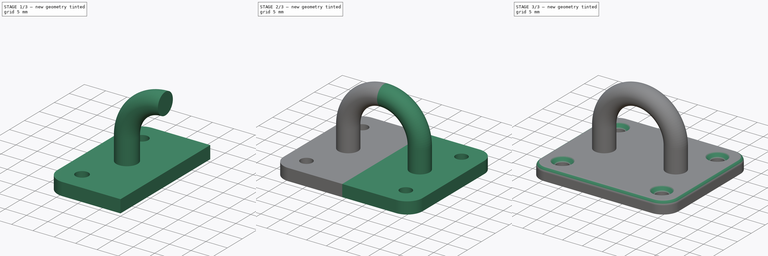
[diagram: build sequence overview — one tinted view per stage of 3, left to right]
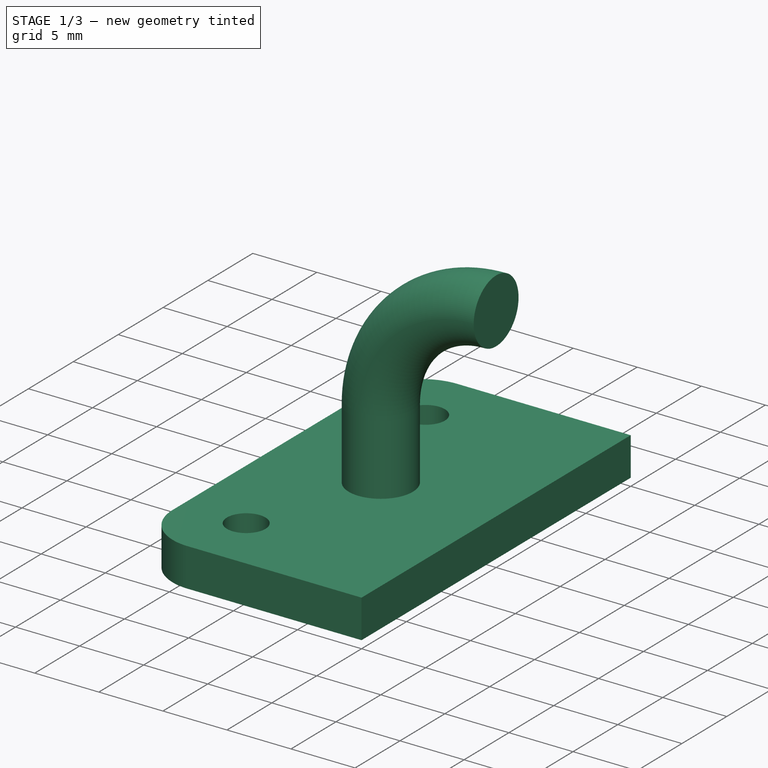
[diagram: stage 1 of 3 — iso view after this stage's code; geometry added in this stage tinted green]
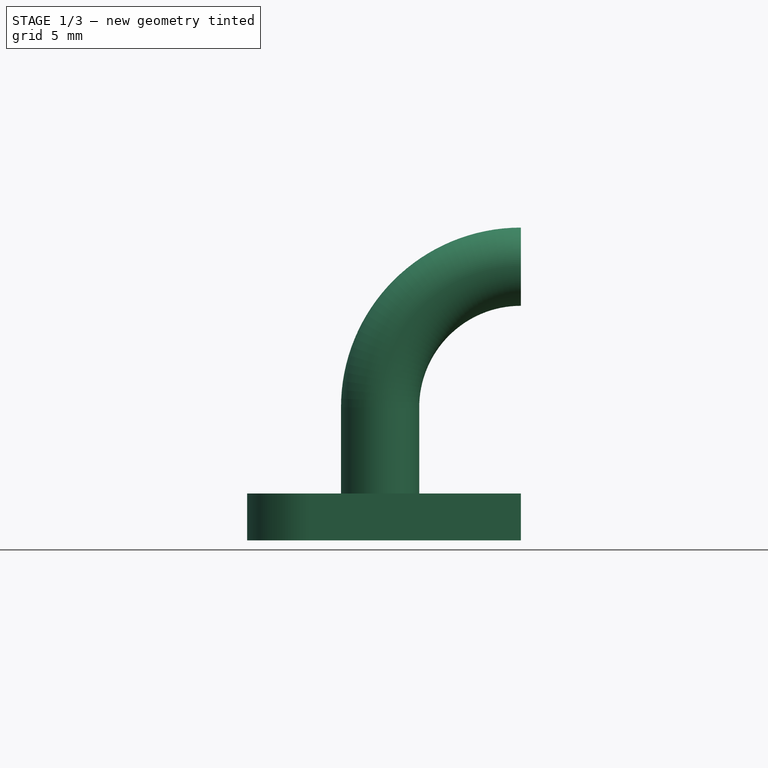
[diagram: stage 1 of 3 — front view after this stage's code; geometry added in this stage tinted green]
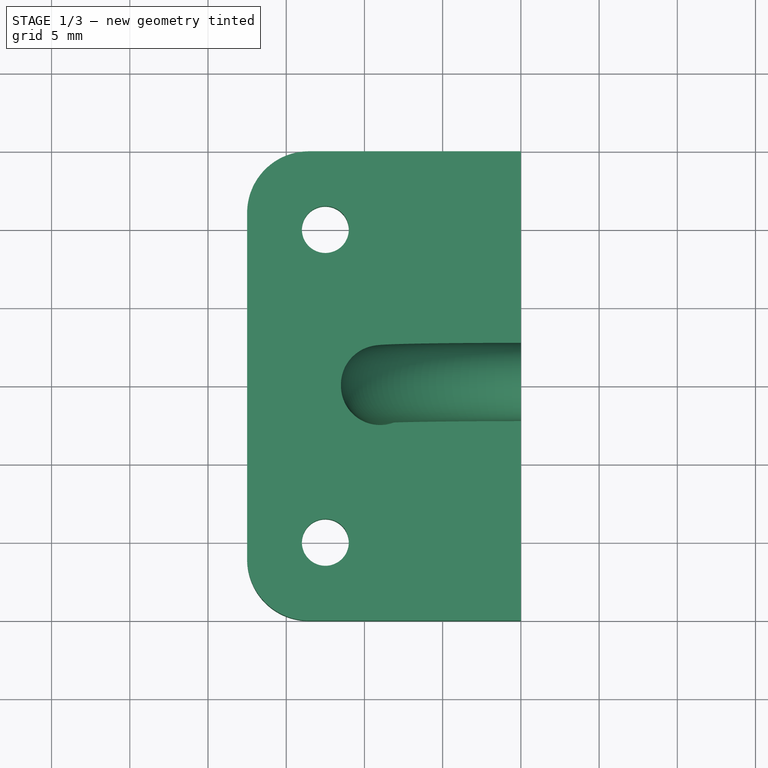
[diagram: stage 1 of 3 — top view after this stage's code; geometry added in this stage tinted green]
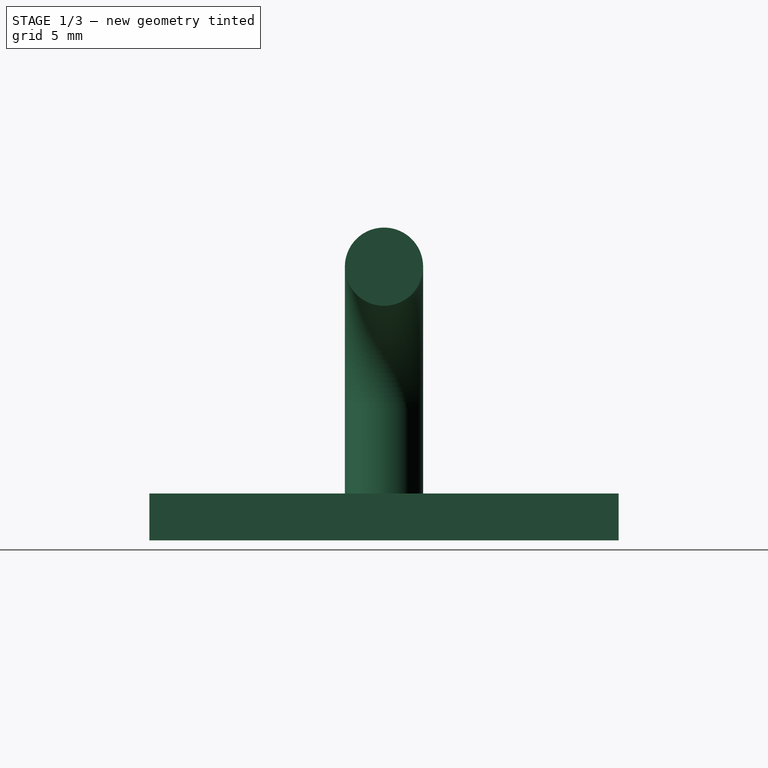
[diagram: stage 1 of 3 — right view after this stage's code; geometry added in this stage tinted green]
FCSTD DOCUMENT  (FreeCAD 0.20R29410 (Git))
Label: MangoJelly_Solutions_Tutorial_Ep14_1
License: All rights reserved
LicenseURL: http://en.wikipedia.org/wiki/All_rights_reserved
objects: Sketcher::SketchObject×3, PartDesign::Pad×1, PartDesign::AdditivePipe×1, PartDesign::Mirrored×1, PartDesign::Chamfer×1, PartDesign::Fillet×1, PartDesign::Body×1
note: 13 computed .brp shape members not serialized (recipe doc carries the construction recipe); baked Part::Feature solids carry a one-line shape summary decoded from their .brp

FEATURE [Sketcher::SketchObject] Sketch
  FullyConstrained = true
  Placement = pos=(0,0,0) rot=(1,0,0;1.5708rad)
  sketch-geometry (8):
    g0: GeomPoint X=0 Y=20 Z=0
    g1: GeomPoint X=4e-16 Y=15 Z=0
    g2: GeomPoint X=0 Y=3 Z=0
    g3: GeomPoint X=-17.5 Y=0 Z=0
    g4: GeomPoint X=-6.5 Y=0 Z=0
    g5: ArcOfCircle CenterX=0 CenterY=8.5 CenterZ=0 NormalX=0 NormalY=0 NormalZ=1 AngleXU=0 Radius=6.5 StartAngle=1.5708 EndAngle=3.14159
    g6: LineSegment StartX=-6.5 StartY=8.5 StartZ=0 EndX=-6.5 EndY=3 EndZ=0
    g7: LineSegment StartX=-6.5 StartY=3 StartZ=0 EndX=-6.5 EndY=0 EndZ=0
  constraints (20):
    c: PointOnObject(g0,g-2)
    c: PointOnObject(g1,g-2)
    c: PointOnObject(g2,g-2)
    c: DistanceY(g-1,g0) = 20
    c: DistanceY(g2,g1) = 12
    c: DistanceY(g1,g0) = 5
    c: DistanceY(g-1,g2) = 3
    c: PointOnObject(g3,g-1)
    c: DistanceX(g3,g-1) = 17.5
    c: PointOnObject(g4,g-1)
    c: DistanceX(g4,g-1) = 6.5
    c: Coincident(g5,g1)
    c: PointOnObject(g5,g-2)
    c: Horizontal(g5,g5)
    c: Vertical(g5,g4)
    c: Coincident(g6,g5)
    c: Coincident(g7,g4)
    c: Coincident(g6,g7)
    c: DistanceY(g7,g6) = 3
    c: Vertical(g5,g6)
FEATURE [Sketcher::SketchObject] Sketch001
  FullyConstrained = true
  MapMode = 5
  Support = -> [XY_Plane]
  sketch-geometry (8):
    g0: LineSegment StartX=0 StartY=15 StartZ=0 EndX=0 EndY=-15 EndZ=0
    g1: LineSegment StartX=0 StartY=-15 StartZ=0 EndX=-13.5607 EndY=-15 EndZ=0
    g2: Circle CenterX=-12.5 CenterY=-10 CenterZ=0 NormalX=0 NormalY=0 NormalZ=1 AngleXU=0 Radius=1.5
    g3: Circle CenterX=-12.5 CenterY=10 CenterZ=0 NormalX=0 NormalY=0 NormalZ=1 AngleXU=0 Radius=1.5
    g4: ArcOfCircle CenterX=-13.5607 CenterY=-11.0607 CenterZ=0 NormalX=0 NormalY=0 NormalZ=1 AngleXU=0 Radius=3.93934 StartAngle=3.14159 EndAngle=4.71239
    g5: LineSegment StartX=-17.5 StartY=-11.0607 StartZ=0 EndX=-17.5 EndY=11.0607 EndZ=0
    g6: LineSegment StartX=-13.5607 StartY=15 StartZ=0 EndX=0 EndY=15 EndZ=0
    g7: ArcOfCircle CenterX=-13.5607 CenterY=11.0607 CenterZ=0 NormalX=0 NormalY=0 NormalZ=1 AngleXU=0 Radius=3.93934 StartAngle=1.5708 EndAngle=3.14159
  constraints (20):
    c: Coincident(g0,g1)
    c: Horizontal(g1)
    c: Vertical(g0)
    c: Symmetric(g0,g0,g-1)
    c: Diameter(g3) = 3
    c: Equal(g2,g3)
    c: Symmetric(g2,g3,g-1)
    c: DistanceY(g0,g0) = 30
    c: Vertical(g5)
    c: Coincident(g6,g0)
    c: Horizontal(g6)
    c: DistanceX(g4,g0) = 17.5
    c: Tangent(g7,g5) = 1.5708
    c: Tangent(g7,g6) = 1.5708
    c: Tangent(g5,g4) = 1.5708
    c: Tangent(g4,g1) = 1.5708
    c: DistanceY(g3,g6) = 5
    c: DistanceX(g5,g3) = 5
    c: PointOnObject(g4,g2)
    c: PointOnObject(g7,g3)
FEATURE [PartDesign::Pad] Pad
  Direction = (0,0,1)
  Length = 3
  Length2 = 10
  Profile = -> Sketch001
  ReferenceAxis = -> Sketch001 [N_Axis]
  Type = 0
FEATURE [Sketcher::SketchObject] Sketch002
  FullyConstrained = true
  MapMode = 5
  Placement = pos=(0,0,3) rot=(0,0,1;0rad)
  Support = -> [Pad]
  sketch-geometry (2):
    g0: Circle CenterX=-9 CenterY=0 CenterZ=0 NormalX=0 NormalY=0 NormalZ=1 AngleXU=0 Radius=2.5
    g1: GeomPoint X=-6.5 Y=0 Z=0
  constraints (5):
    c: PointOnObject(g0,g-1)
    c: Diameter(g0) = 5
    c: PointOnObject(g1,g0)
    c: PointOnObject(g1,g-1)
    c: DistanceX(g1,g-1) = 6.5
FEATURE [PartDesign::AdditivePipe] AdditivePipe
  AuxilleryCurvelinear = true
  AuxillerySpineTangent = false
  BaseFeature = -> Pad
  Binormal = (0,0,0)
  Mode = 0
  Profile = -> Sketch002
  Spine = -> Sketch [Edge2,Edge1]
  SpineTangent = false
  Transformation = 0
  Transition = 0
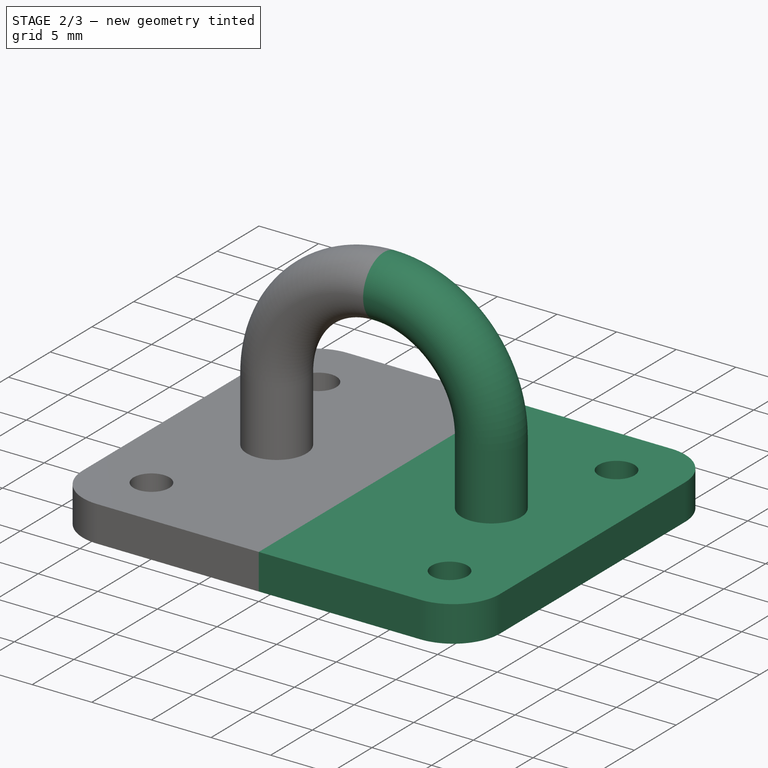
[diagram: stage 2 of 3 — iso view after this stage's code; geometry added in this stage tinted green]
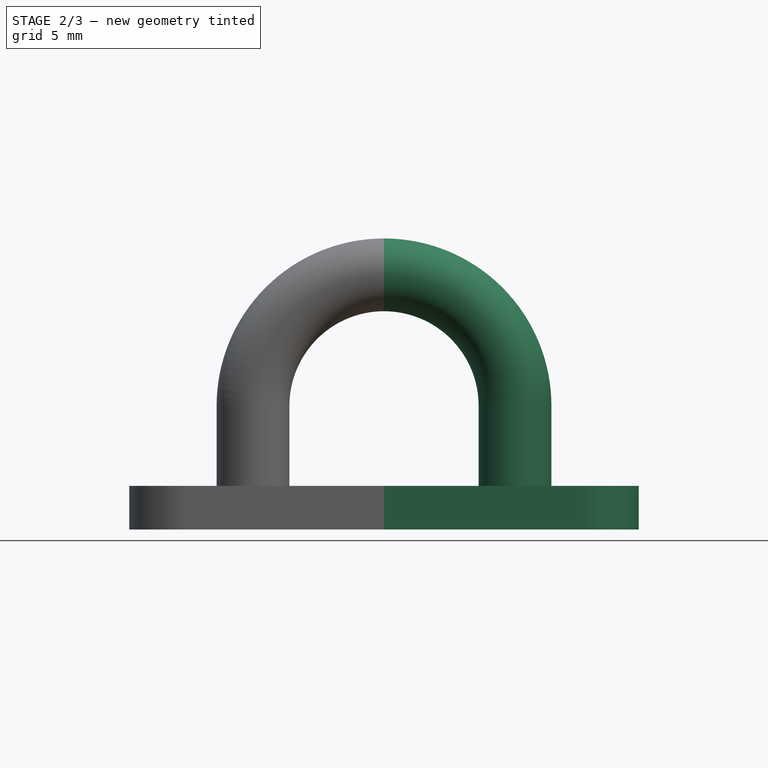
[diagram: stage 2 of 3 — front view after this stage's code; geometry added in this stage tinted green]
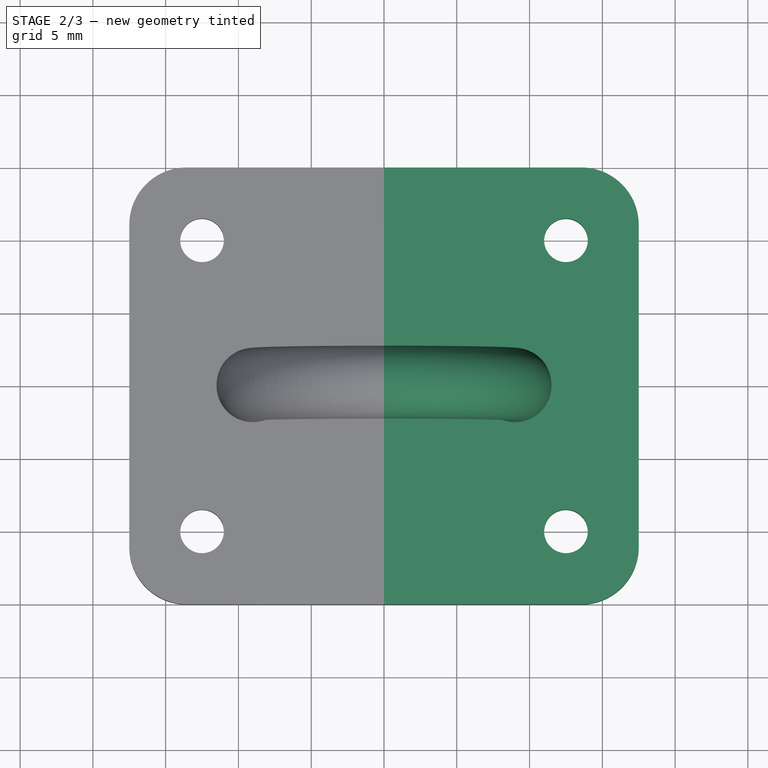
[diagram: stage 2 of 3 — top view after this stage's code; geometry added in this stage tinted green]
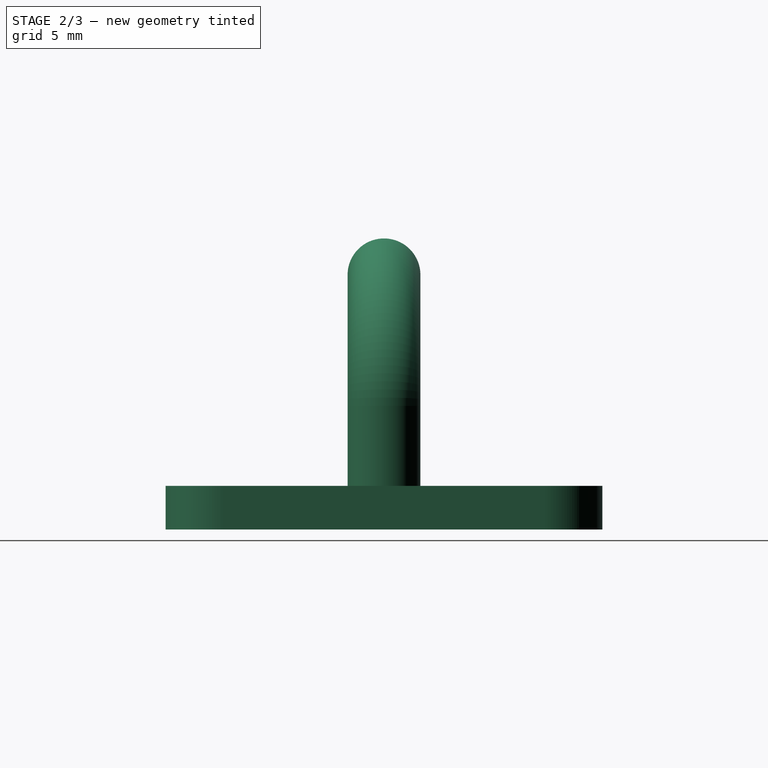
[diagram: stage 2 of 3 — right view after this stage's code; geometry added in this stage tinted green]
FEATURE [PartDesign::Mirrored] Mirrored
  BaseFeature = -> AdditivePipe
  MirrorPlane = -> Sketch001 [V_Axis]
  Originals = -> [Pad,AdditivePipe]
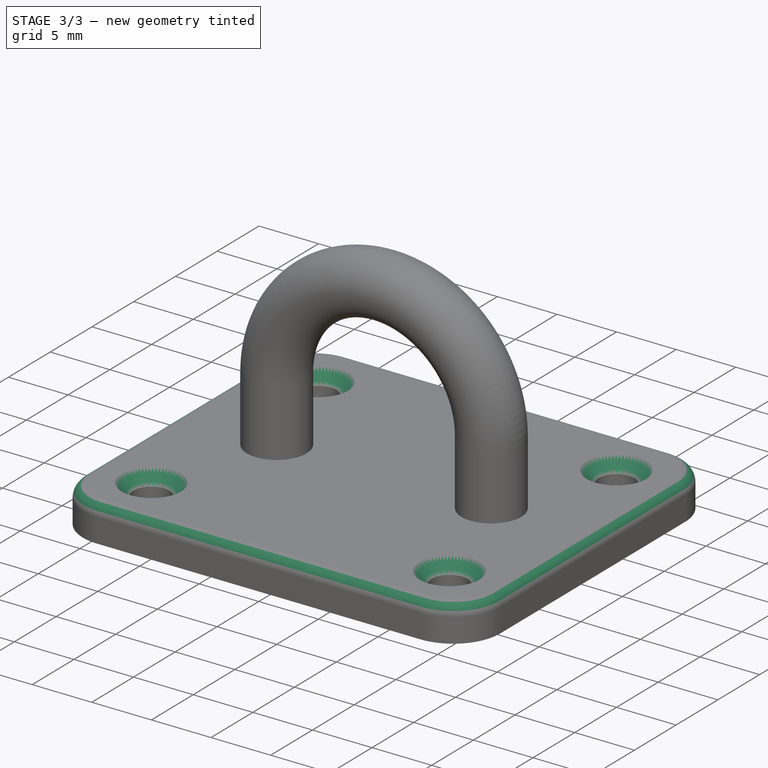
[diagram: stage 3 of 3 — iso view after this stage's code; geometry added in this stage tinted green]
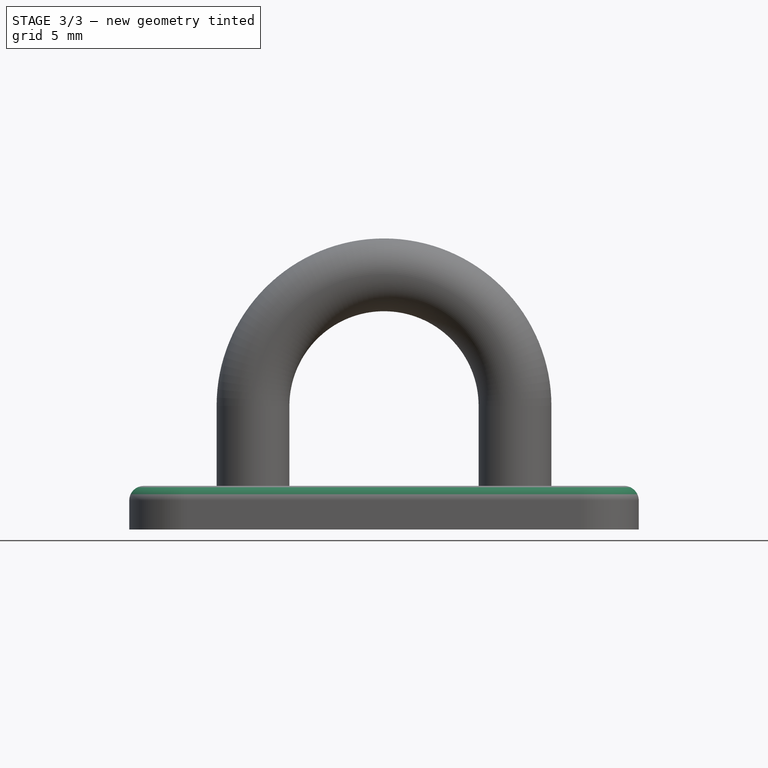
[diagram: stage 3 of 3 — front view after this stage's code; geometry added in this stage tinted green]
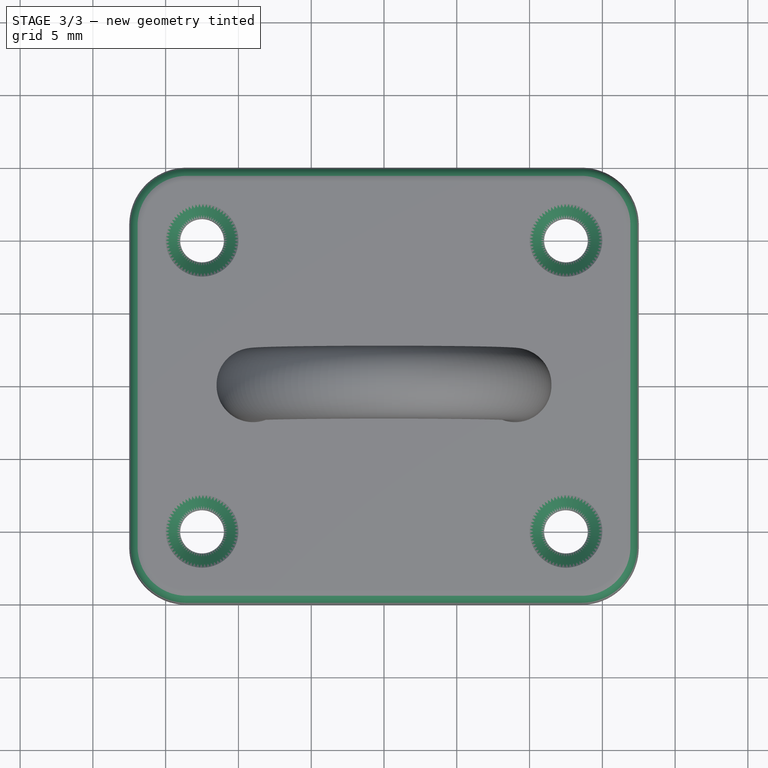
[diagram: stage 3 of 3 — top view after this stage's code; geometry added in this stage tinted green]
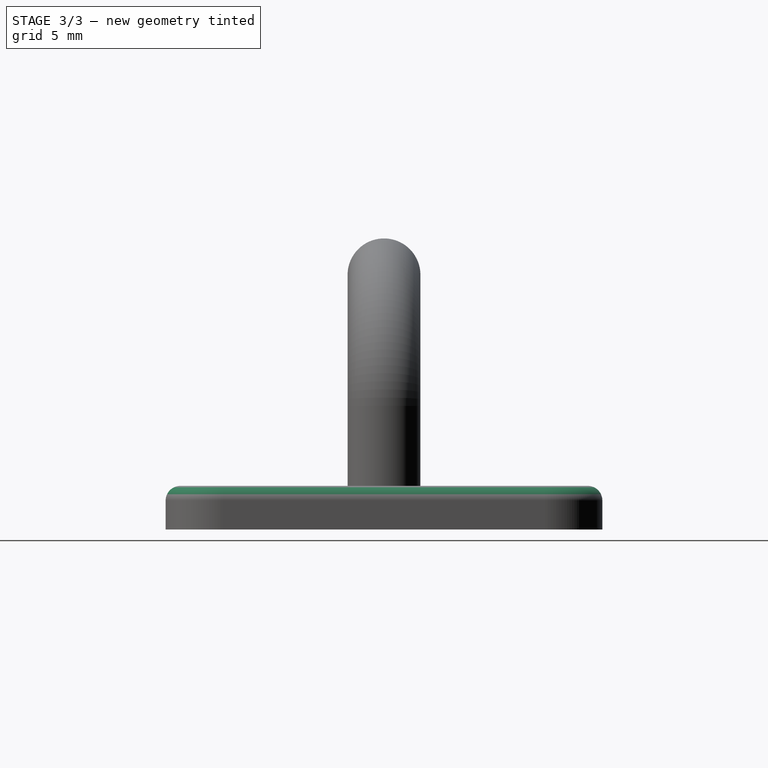
[diagram: stage 3 of 3 — right view after this stage's code; geometry added in this stage tinted green]
FEATURE [PartDesign::Chamfer] Chamfer
  Angle = 45
  Base = -> Mirrored [Edge17,Edge24,Edge23,Edge16]
  BaseFeature = -> Mirrored
  ChamferType = 0
  FlipDirection = false
  Size = 1
  Size2 = 1
  SupportTransform = false
  UseAllEdges = false
FEATURE [PartDesign::Fillet] Fillet
  Base = -> Chamfer [Edge21]
  BaseFeature = -> Chamfer
  Radius = 1
  SupportTransform = false
  UseAllEdges = false
FEATURE [PartDesign::Body] Body
  Group = -> [Sketch001,Pad,Sketch,Sketch002,AdditivePipe,Mirrored,Chamfer,Fillet]
  Origin = -> Origin
  Tip = -> Fillet
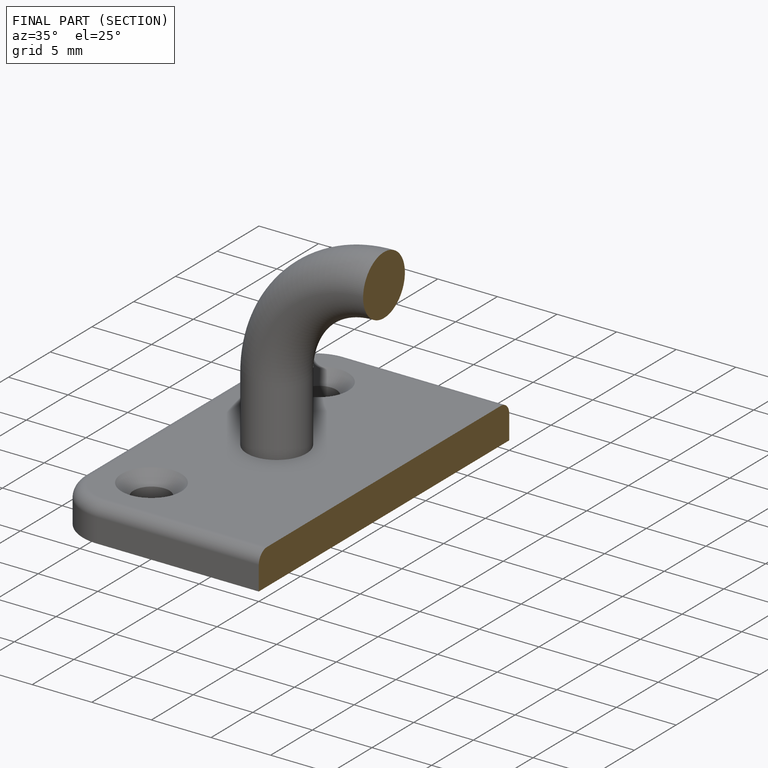
[diagram: finished part — half-section view (interior)]
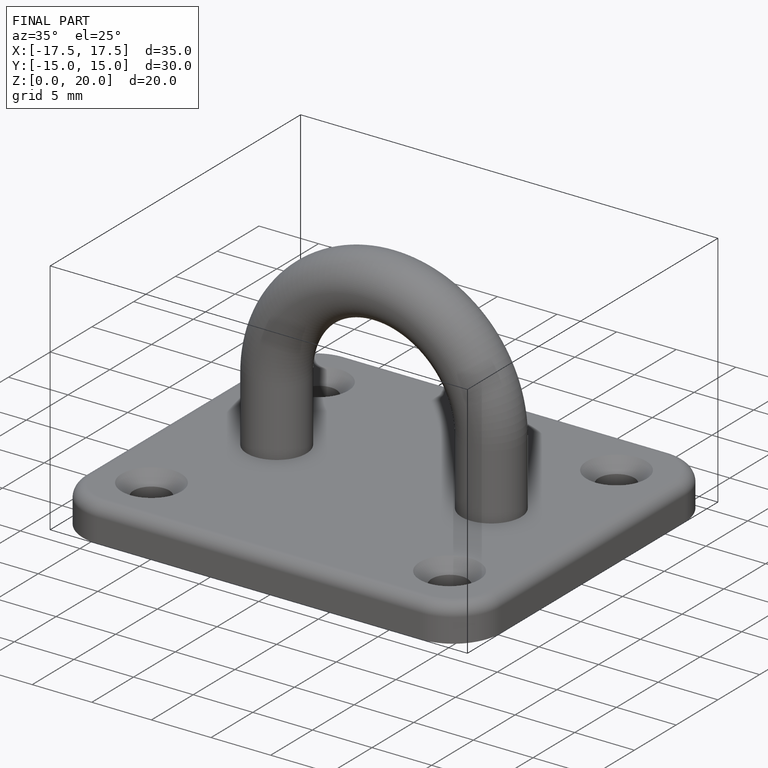
[diagram: finished part — iso view with bounding-box wireframe]
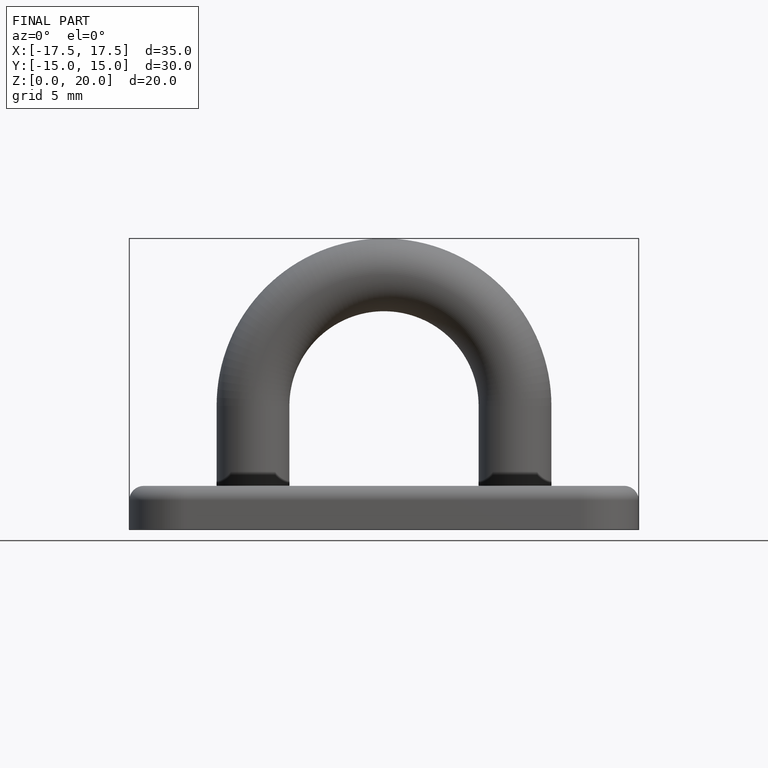
[diagram: finished part — front view with bounding-box wireframe]
